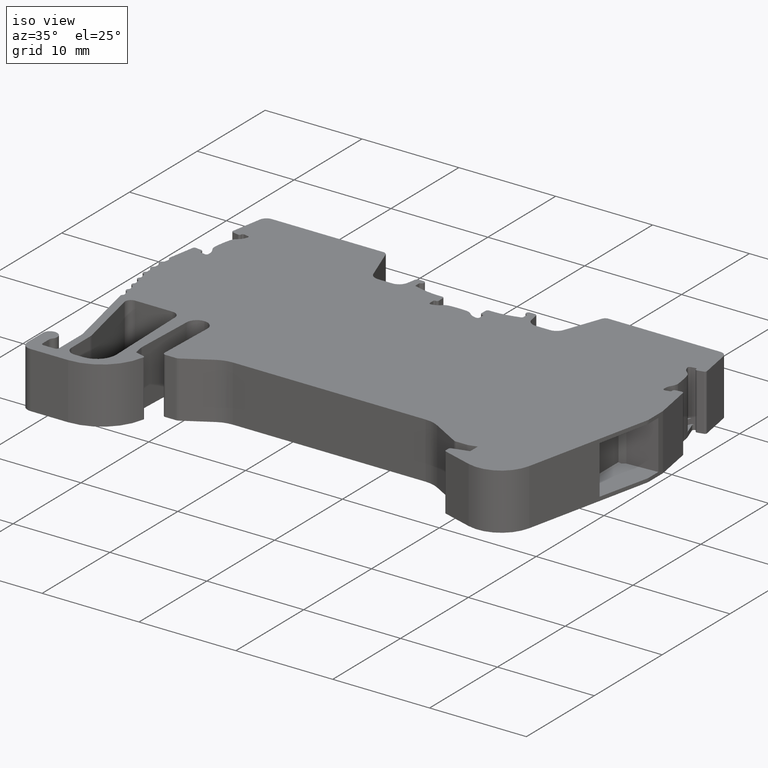
[diagram: clean part render]
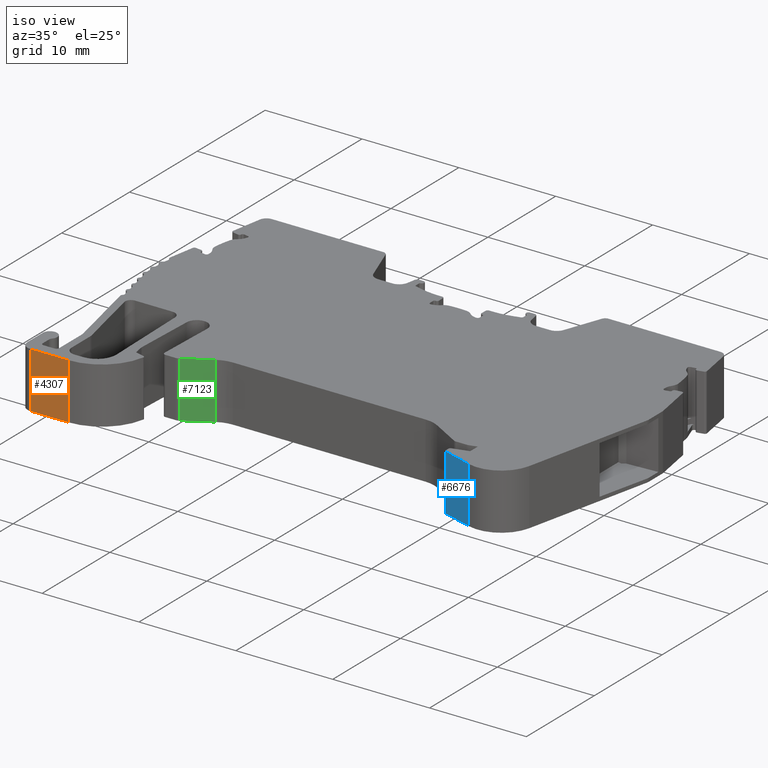
[diagram: same view with three faces highlighted in distinct colors, each labeled with its STEP entity id]
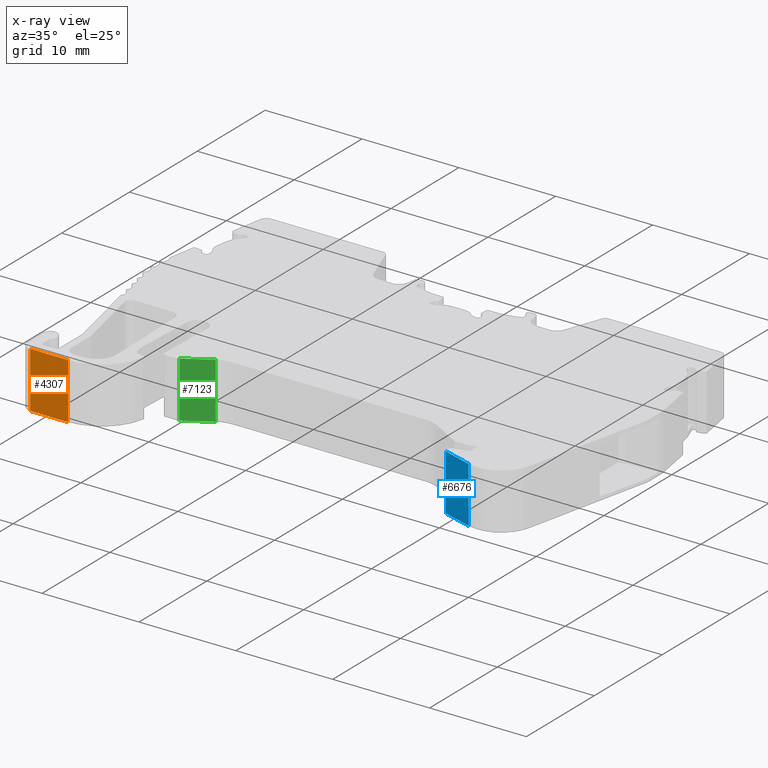
[diagram: x-ray of the same camera — body ghosted, the three highlighted faces saturated]
A machine part, iso view with three faces highlighted in distinct colors.
The next image is the same camera in x-ray (body ghosted, the three faces saturated) — at least one of them is partly hidden behind the body in this view.
Their STEP definitions:

[orange] entity #4307 — the highlighted planar face has unit normal (-0, 1, 0).
#46 = EDGE_CURVE ( 'NONE', #7101, #2980, #7817, .T. ) ;
#253 = DIRECTION ( 'NONE',  ( -1.000000000000000000, 0.0000000000000000000, 0.0000000000000000000 ) ) ;
#316 = VECTOR ( 'NONE', #253, 1000.000000000000000 ) ;
#475 = LINE ( 'NONE', #8196, #5058 ) ;
#635 = VECTOR ( 'NONE', #5304, 1000.000000000000000 ) ;
#935 = CARTESIAN_POINT ( 'NONE',  ( -6.985987635668610867E-12, 487.6674757026160592, -8.900000000000000355 ) ) ;
#1901 = PLANE ( 'NONE',  #2174 ) ;
#1968 = LINE ( 'NONE', #9048, #316 ) ;
#2024 = CARTESIAN_POINT ( 'NONE',  ( 1909.419920688194907, 487.6674757026420366, -8.900000000000000355 ) ) ;
#2174 = AXIS2_PLACEMENT_3D ( 'NONE', #935, #5391, #7171 ) ;
#2967 = ORIENTED_EDGE ( 'NONE', *, *, #6782, .F. ) ;
#2980 = VERTEX_POINT ( 'NONE', #4261 ) ;
#4261 = CARTESIAN_POINT ( 'NONE',  ( 1913.294960898124828, 487.6674757026430029, -14.69999999999999929 ) ) ;
#4307 = ADVANCED_FACE ( 'NONE', ( #9609 ), #1901, .F. ) ;
#4432 = EDGE_LOOP ( 'NONE', ( #5711, #9064, #10950, #2967 ) ) ;
#4585 = CARTESIAN_POINT ( 'NONE',  ( 1913.294960898124828, 487.6674757026440261, -8.900000000000000355 ) ) ;
#4980 = LINE ( 'NONE', #5948, #8250 ) ;
#5058 = VECTOR ( 'NONE', #7565, 1000.000000000000000 ) ;
#5195 = EDGE_CURVE ( 'NONE', #8082, #7101, #475, .T. ) ;
#5212 = VERTEX_POINT ( 'NONE', #9159 ) ;
#5304 = DIRECTION ( 'NONE',  ( 0.0000000000000000000, 0.0000000000000000000, -1.000000000000000000 ) ) ;
#5391 = DIRECTION ( 'NONE',  ( -1.432530973201241977E-14, 1.000000000000000000, 0.0000000000000000000 ) ) ;
#5711 = ORIENTED_EDGE ( 'NONE', *, *, #46, .F. ) ;
#5948 = CARTESIAN_POINT ( 'NONE',  ( 1909.419920688194907, 487.6674757026430029, -8.900000000000000355 ) ) ;
#6222 = CARTESIAN_POINT ( 'NONE',  ( 1913.294960898124828, 487.6674757026430029, -8.900000000000000355 ) ) ;
#6782 = EDGE_CURVE ( 'NONE', #2980, #5212, #1968, .T. ) ;
#7101 = VERTEX_POINT ( 'NONE', #4585 ) ;
#7171 = DIRECTION ( 'NONE',  ( -1.000000000000000000, -1.432530973201241977E-14, 0.0000000000000000000 ) ) ;
#7565 = DIRECTION ( 'NONE',  ( 1.000000000000000000, 4.011086724964164918E-13, 0.0000000000000000000 ) ) ;
#7817 = LINE ( 'NONE', #6222, #635 ) ;
#8082 = VERTEX_POINT ( 'NONE', #2024 ) ;
#8196 = CARTESIAN_POINT ( 'NONE',  ( -1.956076537984579995E-10, 487.6674757018770379, -8.900000000000000355 ) ) ;
#8250 = VECTOR ( 'NONE', #9478, 1000.000000000000000 ) ;
#8674 = EDGE_CURVE ( 'NONE', #8082, #5212, #4980, .T. ) ;
#9048 = CARTESIAN_POINT ( 'NONE',  ( 1909.419920688194907, 487.6674757026430029, -14.69999999999999929 ) ) ;
#9064 = ORIENTED_EDGE ( 'NONE', *, *, #5195, .F. ) ;
#9159 = CARTESIAN_POINT ( 'NONE',  ( 1909.419920688194907, 487.6674757026420366, -14.69999999999999929 ) ) ;
#9478 = DIRECTION ( 'NONE',  ( 0.0000000000000000000, 0.0000000000000000000, -1.000000000000000000 ) ) ;
#9609 = FACE_OUTER_BOUND ( 'NONE', #4432, .T. ) ;
#10950 = ORIENTED_EDGE ( 'NONE', *, *, #8674, .T. ) ;

[blue] entity #6676 — the highlighted planar face has unit normal (-0.2963, -0.9551, 0).
#12 = CARTESIAN_POINT ( 'NONE',  ( 1952.967638756745146, 490.0853089801640294, -14.69999999999999929 ) ) ;
#546 = LINE ( 'NONE', #3067, #3867 ) ;
#834 = CARTESIAN_POINT ( 'NONE',  ( 1949.966321036504951, 491.0162402682919947, -54.16595289389319845 ) ) ;
#892 = DIRECTION ( 'NONE',  ( -0.2962505502116359879, -0.9551102614354549658, 0.0000000000000000000 ) ) ;
#1039 = EDGE_CURVE ( 'NONE', #7929, #9680, #7935, .T. ) ;
#1114 = VECTOR ( 'NONE', #5917, 1000.000000000000114 ) ;
#1699 = CARTESIAN_POINT ( 'NONE',  ( 1949.966321036504951, 491.0162402682919947, -54.16595289389319845 ) ) ;
#1895 = ORIENTED_EDGE ( 'NONE', *, *, #10470, .T. ) ;
#2177 = CARTESIAN_POINT ( 'NONE',  ( 1949.966321036504951, 491.0162402682919947, -8.900000000000000355 ) ) ;
#2553 = DIRECTION ( 'NONE',  ( 0.9551102614354548548, -0.2962505502116359324, 0.0000000000000000000 ) ) ;
#3067 = CARTESIAN_POINT ( 'NONE',  ( 1952.967638756745146, 490.0853089801640294, -54.16595289389319845 ) ) ;
#3301 = VERTEX_POINT ( 'NONE', #8472 ) ;
#3867 = VECTOR ( 'NONE', #8321, 1000.000000000000000 ) ;
#4374 = CARTESIAN_POINT ( 'NONE',  ( 1949.966321036504951, 491.0162402682919947, -14.69999999999999929 ) ) ;
#4443 = FACE_OUTER_BOUND ( 'NONE', #11189, .T. ) ;
#4455 = DIRECTION ( 'NONE',  ( 0.0000000000000000000, 0.0000000000000000000, 1.000000000000000000 ) ) ;
#5179 = CARTESIAN_POINT ( 'NONE',  ( 310.0715997454730086, 999.6692545720509315, -8.900000000000000355 ) ) ;
#5305 = AXIS2_PLACEMENT_3D ( 'NONE', #834, #892, #2553 ) ;
#5357 = ORIENTED_EDGE ( 'NONE', *, *, #10103, .F. ) ;
#5534 = ORIENTED_EDGE ( 'NONE', *, *, #1039, .F. ) ;
#5917 = DIRECTION ( 'NONE',  ( 0.9551102614354598508, -0.2962505502116200007, 0.0000000000000000000 ) ) ;
#6268 = PLANE ( 'NONE',  #5305 ) ;
#6676 = ADVANCED_FACE ( 'NONE', ( #4443 ), #6268, .T. ) ;
#7929 = VERTEX_POINT ( 'NONE', #4374 ) ;
#7935 = LINE ( 'NONE', #1699, #9601 ) ;
#7958 = EDGE_CURVE ( 'NONE', #9680, #3301, #9449, .T. ) ;
#8321 = DIRECTION ( 'NONE',  ( 0.0000000000000000000, 0.0000000000000000000, 1.000000000000000000 ) ) ;
#8472 = CARTESIAN_POINT ( 'NONE',  ( 1952.967638756745146, 490.0853089801640294, -8.900000000000000355 ) ) ;
#9123 = DIRECTION ( 'NONE',  ( -0.9551102614354548548, 0.2962505502116359324, 0.0000000000000000000 ) ) ;
#9303 = VERTEX_POINT ( 'NONE', #12 ) ;
#9449 = LINE ( 'NONE', #5179, #1114 ) ;
#9541 = VECTOR ( 'NONE', #9123, 1000.000000000000114 ) ;
#9601 = VECTOR ( 'NONE', #4455, 1000.000000000000000 ) ;
#9680 = VERTEX_POINT ( 'NONE', #2177 ) ;
#10103 = EDGE_CURVE ( 'NONE', #9303, #7929, #10995, .T. ) ;
#10144 = ORIENTED_EDGE ( 'NONE', *, *, #7958, .F. ) ;
#10470 = EDGE_CURVE ( 'NONE', #9303, #3301, #546, .T. ) ;
#10772 = CARTESIAN_POINT ( 'NONE',  ( 1949.966321036504951, 491.0162402682919947, -14.69999999999999929 ) ) ;
#10995 = LINE ( 'NONE', #10772, #9541 ) ;
#11189 = EDGE_LOOP ( 'NONE', ( #5534, #5357, #1895, #10144 ) ) ;

[green] entity #7123 — the highlighted planar face has unit normal (-0.5, 0.866, 0).
#348 = LINE ( 'NONE', #4759, #7835 ) ;
#462 = VECTOR ( 'NONE', #1942, 1000.000000000000114 ) ;
#673 = EDGE_CURVE ( 'NONE', #792, #9156, #7039, .T. ) ;
#792 = VERTEX_POINT ( 'NONE', #9132 ) ;
#919 = VECTOR ( 'NONE', #8105, 1000.000000000000000 ) ;
#984 = DIRECTION ( 'NONE',  ( -0.8660254037844310471, -0.5000000000000131006, 0.0000000000000000000 ) ) ;
#1942 = DIRECTION ( 'NONE',  ( 0.8660254037844328234, 0.5000000000000099920, 0.0000000000000000000 ) ) ;
#2820 = ORIENTED_EDGE ( 'NONE', *, *, #673, .F. ) ;
#2998 = CARTESIAN_POINT ( 'NONE',  ( 1923.505411333645043, 494.8655637552869848, -8.900000000000000355 ) ) ;
#3031 = VERTEX_POINT ( 'NONE', #7283 ) ;
#4219 = ORIENTED_EDGE ( 'NONE', *, *, #6405, .T. ) ;
#4481 = CARTESIAN_POINT ( 'NONE',  ( 1920.828375641169941, 493.3199764776060192, -14.69999999999999929 ) ) ;
#4759 = CARTESIAN_POINT ( 'NONE',  ( 1923.505411333645043, 494.8655637552869848, -8.900000000000000355 ) ) ;
#4837 = ORIENTED_EDGE ( 'NONE', *, *, #9549, .F. ) ;
#5327 = FACE_OUTER_BOUND ( 'NONE', #7205, .T. ) ;
#5530 = LINE ( 'NONE', #7415, #919 ) ;
#5576 = EDGE_CURVE ( 'NONE', #9156, #7997, #348, .T. ) ;
#5868 = ORIENTED_EDGE ( 'NONE', *, *, #5576, .F. ) ;
#6211 = AXIS2_PLACEMENT_3D ( 'NONE', #9771, #8011, #984 ) ;
#6405 = EDGE_CURVE ( 'NONE', #792, #3031, #5530, .T. ) ;
#6927 = CARTESIAN_POINT ( 'NONE',  ( 266.5932779983340311, -461.7531024494369944, -8.900000000000000355 ) ) ;
#7039 = LINE ( 'NONE', #6927, #462 ) ;
#7123 = ADVANCED_FACE ( 'NONE', ( #5327 ), #7953, .F. ) ;
#7205 = EDGE_LOOP ( 'NONE', ( #5868, #2820, #4219, #4837 ) ) ;
#7283 = CARTESIAN_POINT ( 'NONE',  ( 1920.828375641169941, 493.3199764776060192, -14.69999999999999929 ) ) ;
#7415 = CARTESIAN_POINT ( 'NONE',  ( 1920.828375641169941, 493.3199764776060192, -8.900000000000000355 ) ) ;
#7442 = DIRECTION ( 'NONE',  ( 0.0000000000000000000, 0.0000000000000000000, -1.000000000000000000 ) ) ;
#7835 = VECTOR ( 'NONE', #7442, 1000.000000000000000 ) ;
#7953 = PLANE ( 'NONE',  #6211 ) ;
#7997 = VERTEX_POINT ( 'NONE', #11205 ) ;
#8011 = DIRECTION ( 'NONE',  ( -0.5000000000000132117, 0.8660254037844311581, 0.0000000000000000000 ) ) ;
#8105 = DIRECTION ( 'NONE',  ( 0.0000000000000000000, 0.0000000000000000000, -1.000000000000000000 ) ) ;
#8633 = VECTOR ( 'NONE', #10573, 1000.000000000000000 ) ;
#9132 = CARTESIAN_POINT ( 'NONE',  ( 1920.828375641169941, 493.3199764776060192, -8.900000000000000355 ) ) ;
#9156 = VERTEX_POINT ( 'NONE', #2998 ) ;
#9549 = EDGE_CURVE ( 'NONE', #7997, #3031, #9833, .T. ) ;
#9771 = CARTESIAN_POINT ( 'NONE',  ( 266.5932779983390333, -461.7531024494410303, -8.900000000000000355 ) ) ;
#9833 = LINE ( 'NONE', #4481, #8633 ) ;
#10573 = DIRECTION ( 'NONE',  ( -0.8660254037843941877, -0.5000000000000771605, 0.0000000000000000000 ) ) ;
#11205 = CARTESIAN_POINT ( 'NONE',  ( 1923.505411333645043, 494.8655637552869848, -14.69999999999999929 ) ) ;